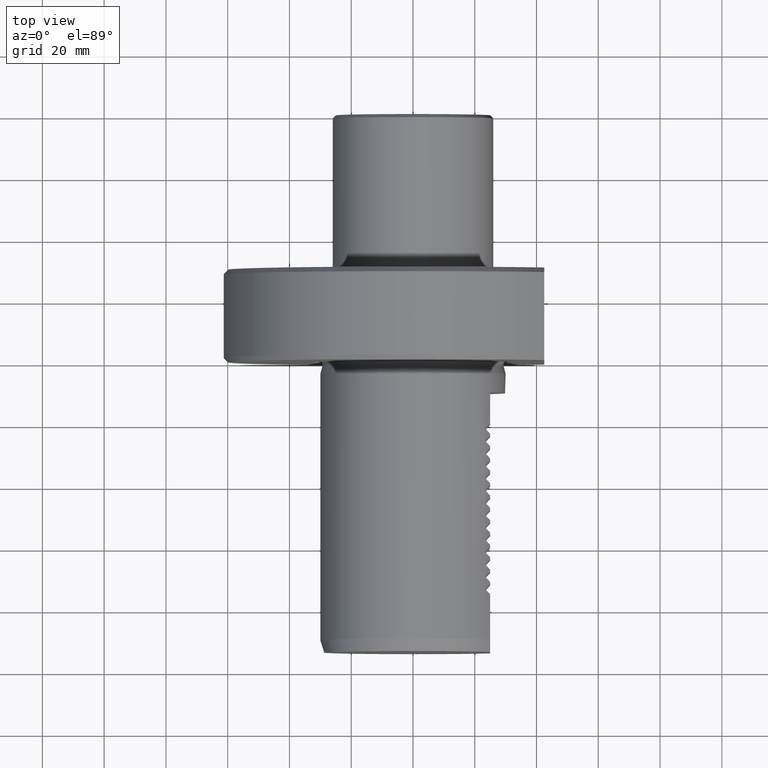
[diagram: clean part render]
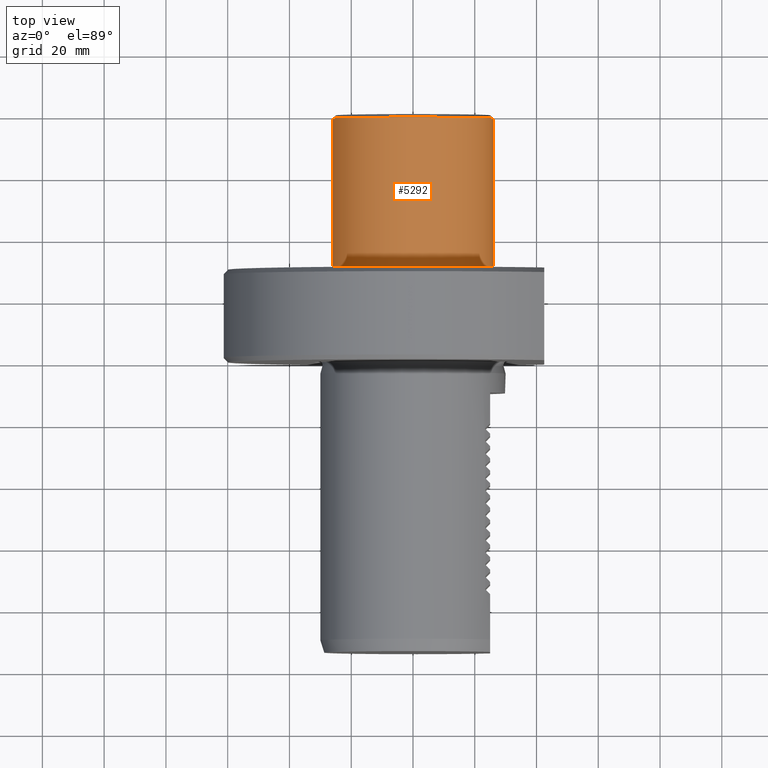
[diagram: same view with one face highlighted and labeled with its STEP entity id]
A machine part, top view. The second image highlights one B-rep face of the part: STEP entity #5292.
In plain terms, the highlighted cylindrical surface (bore or boss wall) has radius 26 mm, axis along (-0, 1, -0).
Its self-contained STEP definition (entity closure, byte-faithful):
#399 = AXIS2_PLACEMENT_3D ( 'NONE', #9790, #10843, #7508 ) ;
#452 = CARTESIAN_POINT ( 'NONE',  ( -1.023343228783779527E-14, 79.00000000000000000, 0.000000000000000000 ) ) ;
#556 = AXIS2_PLACEMENT_3D ( 'NONE', #13616, #4782, #6989 ) ;
#1201 = AXIS2_PLACEMENT_3D ( 'NONE', #452, #4876, #9363 ) ;
#1757 = EDGE_CURVE ( 'NONE', #3159, #3159, #6833, .T. ) ;
#2064 = CYLINDRICAL_SURFACE ( 'NONE', #399, 25.99999999999999645 ) ;
#2448 = EDGE_CURVE ( 'NONE', #2874, #2874, #7469, .T. ) ;
#2874 = VERTEX_POINT ( 'NONE', #6197 ) ;
#3091 = FACE_OUTER_BOUND ( 'NONE', #12270, .T. ) ;
#3159 = VERTEX_POINT ( 'NONE', #4227 ) ;
#3409 = ORIENTED_EDGE ( 'NONE', *, *, #1757, .T. ) ;
#4227 = CARTESIAN_POINT ( 'NONE',  ( -26.00000000000000711, 30.79999999999999361, 0.000000000000000000 ) ) ;
#4782 = DIRECTION ( 'NONE',  ( -1.295371175675670281E-16, 1.000000000000000000, -0.000000000000000000 ) ) ;
#4876 = DIRECTION ( 'NONE',  ( -1.295371175675670281E-16, 1.000000000000000000, -0.000000000000000000 ) ) ;
#5292 = ADVANCED_FACE ( 'Defeature completata1_15', ( #3091, #7431 ), #2064, .T. ) ;
#5341 = EDGE_LOOP ( 'NONE', ( #13778 ) ) ;
#6197 = CARTESIAN_POINT ( 'NONE',  ( -26.00000000000000355, 79.00000000000000000, 0.000000000000000000 ) ) ;
#6833 = CIRCLE ( 'NONE', #556, 26.00000000000000355 ) ;
#6989 = DIRECTION ( 'NONE',  ( -1.000000000000000000, -1.334402673828312846E-16, 0.000000000000000000 ) ) ;
#7431 = FACE_OUTER_BOUND ( 'NONE', #5341, .T. ) ;
#7469 = CIRCLE ( 'NONE', #1201, 25.99999999999999289 ) ;
#7508 = DIRECTION ( 'NONE',  ( -1.000000000000000000, -1.295371175675670034E-16, 0.000000000000000000 ) ) ;
#9363 = DIRECTION ( 'NONE',  ( -1.000000000000000000, 0.000000000000000000, 0.000000000000000000 ) ) ;
#9790 = CARTESIAN_POINT ( 'NONE',  ( 0.000000000000000000, 0.000000000000000000, 0.000000000000000000 ) ) ;
#10843 = DIRECTION ( 'NONE',  ( -1.295371175675670281E-16, 1.000000000000000000, -0.000000000000000000 ) ) ;
#12270 = EDGE_LOOP ( 'NONE', ( #3409 ) ) ;
#13616 = CARTESIAN_POINT ( 'NONE',  ( -3.989743221081063893E-15, 30.79999999999999716, 0.000000000000000000 ) ) ;
#13778 = ORIENTED_EDGE ( 'NONE', *, *, #2448, .F. ) ;